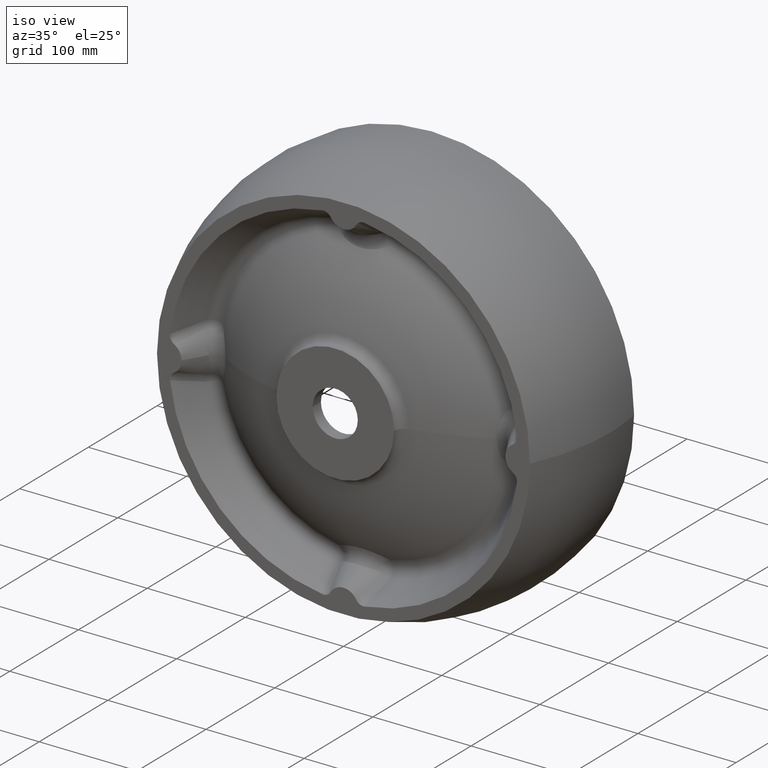
[diagram: clean part render]
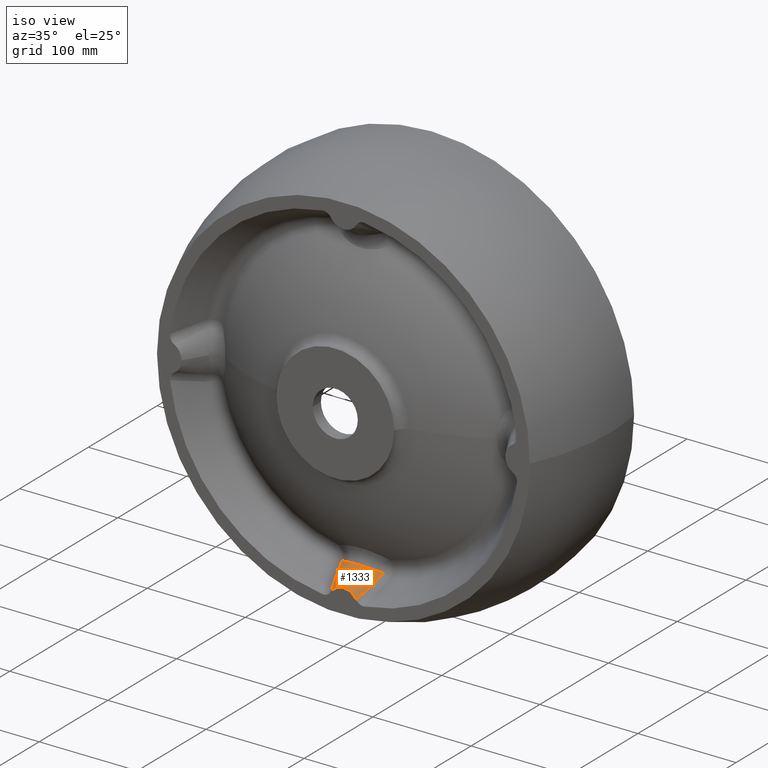
[diagram: same view with one face highlighted and labeled with its STEP entity id]
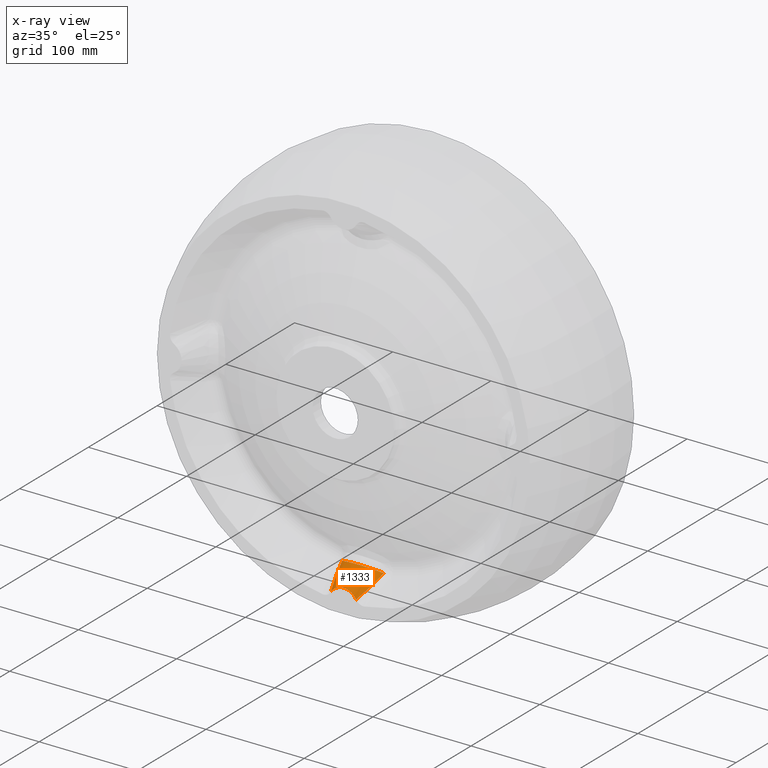
[diagram: x-ray of the same camera — body ghosted, the highlighted face saturated]
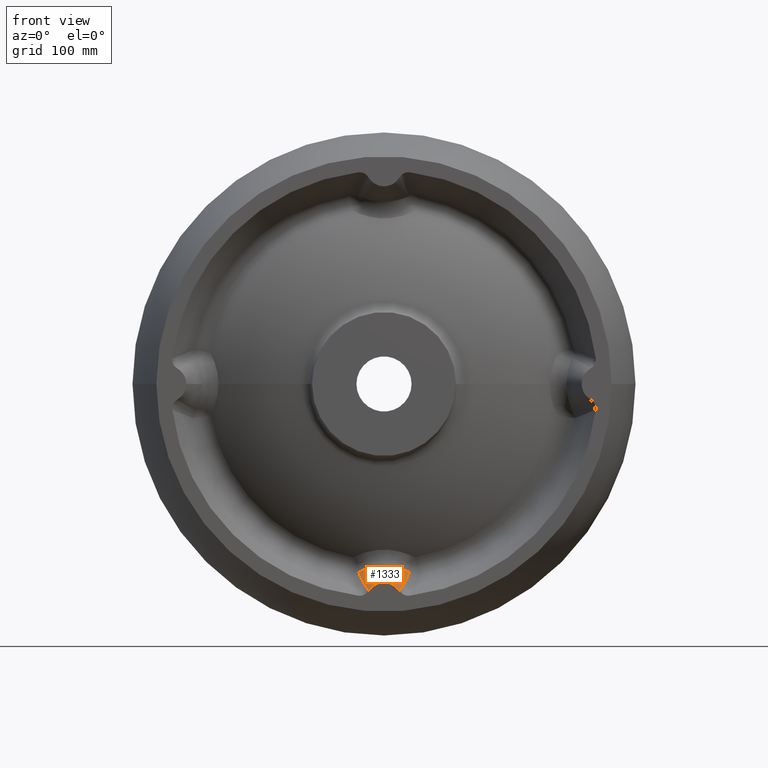
[diagram: same view with one face highlighted and labeled with its STEP entity id]
A machine part, iso view. The second image highlights one B-rep face of the part: STEP entity #1333.
The next image is the same camera in x-ray: the body ghosted, the highlighted face saturated — about 0% of this face is hidden behind the body in this view.
A second angle (front view) of the same face is appended — the face is thin or edge-on in the first view.
In plain terms, the highlighted conical surface has half-angle 30 deg.
Its self-contained STEP definition (entity closure, byte-faithful):
#26 = CARTESIAN_POINT ( 'NONE',  ( 12.96485032081609400, 1.616499671634494200E-015, -172.4559522695812700 ) ) ;
#30 = CARTESIAN_POINT ( 'NONE',  ( -16.23906409761534400, 9.470445155243481800, -167.5284541950109700 ) ) ;
#46 = CARTESIAN_POINT ( 'NONE',  ( -16.96138117950839000, 11.83566144567937100, -166.2409492017475300 ) ) ;
#99 = CARTESIAN_POINT ( 'NONE',  ( 10.85765085357265600, 23.67982504195950400, -153.4599711197741700 ) ) ;
#140 = B_SPLINE_CURVE_WITH_KNOTS ( 'NONE', 3,
 ( #684, #300, #2297, #2304, #659, #99, #1963, #446, #327, #2263, #534, #1953, #858, #1585, #632, #1028, #1594, #1619, #1636, #1911, #1254, #1933, #641, #1024, #1038, #1054, #2289, #1061 ),
 .UNSPECIFIED., .F., .F.,
 ( 4, 2, 2, 2, 2, 2, 2, 2, 2, 2, 2, 2, 2, 4 ),
 ( 0.0000000000000000000, 0.005726287446532651200, 0.01145257489306530800, 0.01288414675469846900, 0.01431571861633163300, 0.01717886233959794300, 0.02290514978613056300, 0.02433672164776372000, 0.02576829350939687300, 0.02863143723266318000, 0.03435772467919578900, 0.03722086840246209600, 0.04008401212572839500, 0.04581029957226101500 ),
 .UNSPECIFIED. ) ;
#208 = CIRCLE ( 'NONE', #1644, 15.00000000000001600 ) ;
#300 = CARTESIAN_POINT ( 'NONE',  ( 19.71659460192094900, 27.47907943215798100, -156.1995768113801500 ) ) ;
#327 = CARTESIAN_POINT ( 'NONE',  ( 9.029474118803285900, 23.17000529407080100, -153.0936266804310400 ) ) ;
#331 = CARTESIAN_POINT ( 'NONE',  ( 12.96485032081609400, 1.616499671634494200E-015, -172.4559522695812700 ) ) ;
#341 = DIRECTION ( 'NONE',  ( 1.000000000000000000, 1.246832498358330100E-016, 0.0000000000000000000 ) ) ;
#381 = VERTEX_POINT ( 'NONE', #922 ) ;
#446 = CARTESIAN_POINT ( 'NONE',  ( 9.492302180528861700, 23.29017175912494900, -153.1799311768744200 ) ) ;
#498 = CARTESIAN_POINT ( 'NONE',  ( -21.26120402366622400, 28.42218461940033300, -156.8802809733153900 ) ) ;
#534 = CARTESIAN_POINT ( 'NONE',  ( 6.699852081449409800, 22.64797763305028900, -152.7190133217515900 ) ) ;
#587 = FACE_OUTER_BOUND ( 'NONE', #1310, .T. ) ;
#632 = CARTESIAN_POINT ( 'NONE',  ( -0.9164655709734008700, 22.04199864030673000, -152.2849582291619600 ) ) ;
#641 = CARTESIAN_POINT ( 'NONE',  ( -13.01592981806033600, 24.39577053634012000, -153.9751026302333800 ) ) ;
#655 = CARTESIAN_POINT ( 'NONE',  ( -12.96485032081604900, -1.616499671634487300E-015, -172.4559522695812700 ) ) ;
#659 = CARTESIAN_POINT ( 'NONE',  ( 13.09391213125592300, 24.38962465891990000, -153.9705044620947100 ) ) ;
#665 = ORIENTED_EDGE ( 'NONE', *, *, #1144, .F. ) ;
#684 = CARTESIAN_POINT ( 'NONE',  ( 21.26120402366617100, 28.42218461940031600, -156.8802809733153400 ) ) ;
#698 = VERTEX_POINT ( 'NONE', #1875 ) ;
#706 = ORIENTED_EDGE ( 'NONE', *, *, #919, .T. ) ;
#858 = CARTESIAN_POINT ( 'NONE',  ( 1.974981356571216900, 22.03618910536508600, -152.2808014630836600 ) ) ;
#878 = CARTESIAN_POINT ( 'NONE',  ( -20.19088380017849700, 23.67324819878686900, -159.6209031666134600 ) ) ;
#907 = DIRECTION ( 'NONE',  ( -1.246832498358330100E-016, 1.000000000000000000, -0.0000000000000000000 ) ) ;
#919 = EDGE_CURVE ( 'NONE', #698, #381, #140, .T. ) ;
#922 = CARTESIAN_POINT ( 'NONE',  ( -21.26120402366622400, 28.42218461940033300, -156.8802809733153900 ) ) ;
#1024 = CARTESIAN_POINT ( 'NONE',  ( -14.75547157415996000, 25.07656309454925400, -154.4656262536212200 ) ) ;
#1028 = CARTESIAN_POINT ( 'NONE',  ( -1.885730255252364900, 22.07989214341785100, -152.3120763394030100 ) ) ;
#1038 = CARTESIAN_POINT ( 'NONE',  ( -15.60673598153682700, 25.44240152138407000, -154.7294256234313000 ) ) ;
#1048 = ORIENTED_EDGE ( 'NONE', *, *, #1220, .T. ) ;
#1054 = CARTESIAN_POINT ( 'NONE',  ( -18.11060077171592300, 26.60857076409474700, -155.5708168610324800 ) ) ;
#1061 = CARTESIAN_POINT ( 'NONE',  ( -21.26120402366622400, 28.42218461940033300, -156.8802809733153900 ) ) ;
#1134 = CARTESIAN_POINT ( 'NONE',  ( 2.204364238465235800E-014, 2.748472970737367900E-030, -180.0000000000000000 ) ) ;
#1144 = EDGE_CURVE ( 'NONE', #2007, #1998, #208, .T. ) ;
#1152 = B_SPLINE_CURVE_WITH_KNOTS ( 'NONE', 3,
 ( #26, #1861, #1420, #1319, #1640, #1959, #1955, #1871, #1968, #2140 ),
 .UNSPECIFIED., .F., .F.,
 ( 4, 2, 2, 2, 4 ),
 ( 7.724059993584473000E-018, 0.008365883048966094400, 0.01673176609793218200, 0.02509764914689827100, 0.03346353219586435700 ),
 .UNSPECIFIED. ) ;
#1204 = B_SPLINE_CURVE_WITH_KNOTS ( 'NONE', 3,
 ( #498, #878, #1343, #46, #30, #2069, #2059, #655 ),
 .UNSPECIFIED., .F., .F.,
 ( 4, 2, 2, 4 ),
 ( 0.0000000000000000000, 0.01672760891185132900, 0.02509141336777700700, 0.03345521782370268500 ),
 .UNSPECIFIED. ) ;
#1220 = EDGE_CURVE ( 'NONE', #2007, #698, #1152, .T. ) ;
#1254 = CARTESIAN_POINT ( 'NONE',  ( -9.423586272765193800, 23.22889014475546800, -153.1356536882405500 ) ) ;
#1310 = EDGE_LOOP ( 'NONE', ( #665, #1048, #706, #1907 ) ) ;
#1319 = CARTESIAN_POINT ( 'NONE',  ( 16.23672349023463500, 9.462993895083780400, -167.5324738609270700 ) ) ;
#1333 = ADVANCED_FACE ( 'NONE', ( #587 ), #1451, .T. ) ;
#1343 = CARTESIAN_POINT ( 'NONE',  ( -19.00043222946895900, 18.93504613113911700, -162.3171254510768600 ) ) ;
#1420 = CARTESIAN_POINT ( 'NONE',  ( 14.68660955852957900, 4.732372924280634100, -170.0474707392384100 ) ) ;
#1451 = CONICAL_SURFACE ( 'NONE', #1654, 15.00000000000001600, 0.5235987755983000400 ) ;
#1473 = CARTESIAN_POINT ( 'NONE',  ( -12.96485032081604900, -1.616499671634487300E-015, -172.4559522695812700 ) ) ;
#1585 = CARTESIAN_POINT ( 'NONE',  ( -0.4333320105541649800, 22.03294157108090800, -152.2784776233404800 ) ) ;
#1594 = CARTESIAN_POINT ( 'NONE',  ( -2.370960623180173000, 22.10875846180972500, -152.3327352940768300 ) ) ;
#1619 = CARTESIAN_POINT ( 'NONE',  ( -3.814076750371005400, 22.22363168240607600, -152.4149680248689000 ) ) ;
#1636 = CARTESIAN_POINT ( 'NONE',  ( -4.764861217368102900, 22.33806212708235600, -152.4969024039539800 ) ) ;
#1640 = CARTESIAN_POINT ( 'NONE',  ( 16.95938862087613300, 11.82893223344945900, -166.2446404995293700 ) ) ;
#1644 = AXIS2_PLACEMENT_3D ( 'NONE', #1134, #1666, #2306 ) ;
#1654 = AXIS2_PLACEMENT_3D ( 'NONE', #1784, #907, #341 ) ;
#1666 = DIRECTION ( 'NONE',  ( 1.246832498358330100E-016, -1.000000000000000000, 0.0000000000000000000 ) ) ;
#1784 = CARTESIAN_POINT ( 'NONE',  ( 2.204364238465235800E-014, 2.748472970737367900E-030, -180.0000000000000000 ) ) ;
#1791 = EDGE_CURVE ( 'NONE', #381, #1998, #1204, .T. ) ;
#1861 = CARTESIAN_POINT ( 'NONE',  ( 13.85934245019097800, 2.367833014239939500, -171.2750107948744500 ) ) ;
#1871 = CARTESIAN_POINT ( 'NONE',  ( 20.16086149537015300, 23.67777473726432200, -159.6082151014775000 ) ) ;
#1875 = CARTESIAN_POINT ( 'NONE',  ( 21.26120402366617100, 28.42218461940031600, -156.8802809733153400 ) ) ;
#1907 = ORIENTED_EDGE ( 'NONE', *, *, #1791, .T. ) ;
#1911 = CARTESIAN_POINT ( 'NONE',  ( -7.585454247239950700, 22.78767564093808000, -152.8191278886556900 ) ) ;
#1933 = CARTESIAN_POINT ( 'NONE',  ( -12.12411049457863400, 24.07982326175666900, -153.7476643314300600 ) ) ;
#1953 = CARTESIAN_POINT ( 'NONE',  ( 3.878132469235652900, 22.19389684030640800, -152.3935772072694300 ) ) ;
#1955 = CARTESIAN_POINT ( 'NONE',  ( 18.95773172771911100, 18.93632490464557000, -162.2964850005669200 ) ) ;
#1959 = CARTESIAN_POINT ( 'NONE',  ( 18.31992688259444800, 16.56551590609245000, -163.6267906230586400 ) ) ;
#1963 = CARTESIAN_POINT ( 'NONE',  ( 10.40578844824187500, 23.54494191953917700, -153.3630030928789000 ) ) ;
#1968 = CARTESIAN_POINT ( 'NONE',  ( 20.72639310267893400, 26.04926574420397900, -158.2496979450883400 ) ) ;
#1998 = VERTEX_POINT ( 'NONE', #1473 ) ;
#2007 = VERTEX_POINT ( 'NONE', #331 ) ;
#2059 = CARTESIAN_POINT ( 'NONE',  ( -13.86085066085075300, 2.371825437287016700, -171.2730195995779400 ) ) ;
#2069 = CARTESIAN_POINT ( 'NONE',  ( -14.68870173766534000, 4.738450474156545400, -170.0442977549407700 ) ) ;
#2140 = CARTESIAN_POINT ( 'NONE',  ( 21.26120402366617100, 28.42218461940031600, -156.8802809733153400 ) ) ;
#2263 = CARTESIAN_POINT ( 'NONE',  ( 7.634917225230112500, 22.83562949587329200, -152.8535797539908000 ) ) ;
#2289 = CARTESIAN_POINT ( 'NONE',  ( -19.71350830751771400, 27.47719500738363900, -156.1982166918472200 ) ) ;
#2297 = CARTESIAN_POINT ( 'NONE',  ( 18.12101310851585400, 26.61459369412417100, -155.5751680127233100 ) ) ;
#2304 = CARTESIAN_POINT ( 'NONE',  ( 14.80959712202299300, 25.06997937989211100, -154.4607174807013300 ) ) ;
#2306 = DIRECTION ( 'NONE',  ( 1.000000000000000000, 1.246832498358330100E-016, 0.0000000000000000000 ) ) ;